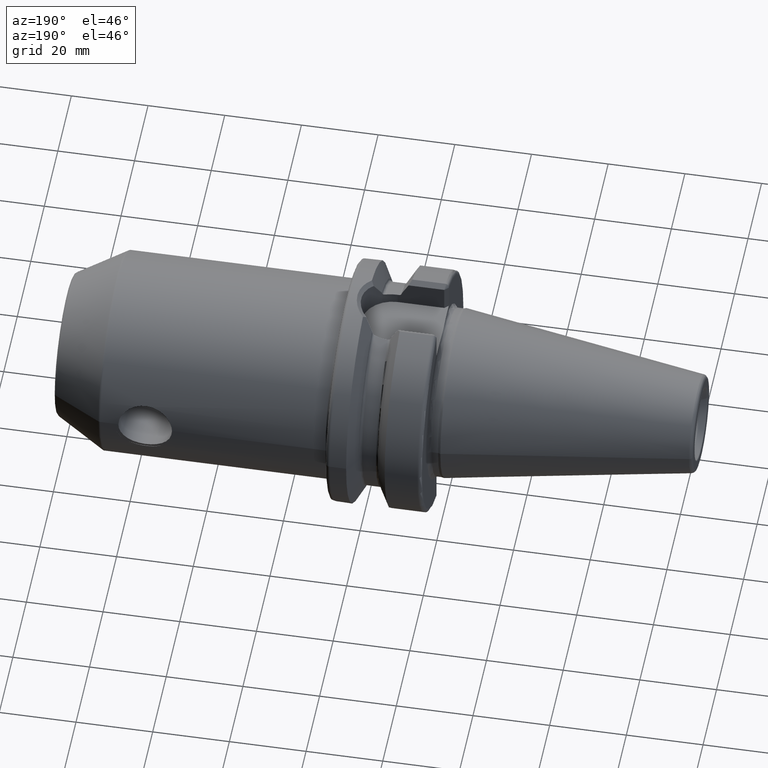
[diagram: clean part render]
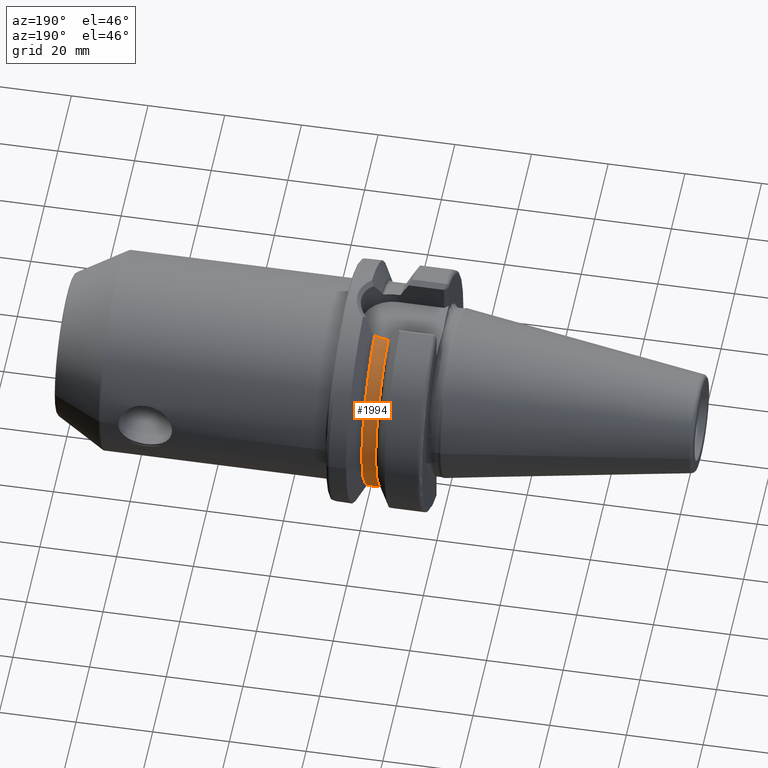
[diagram: same view with one face highlighted and labeled with its STEP entity id]
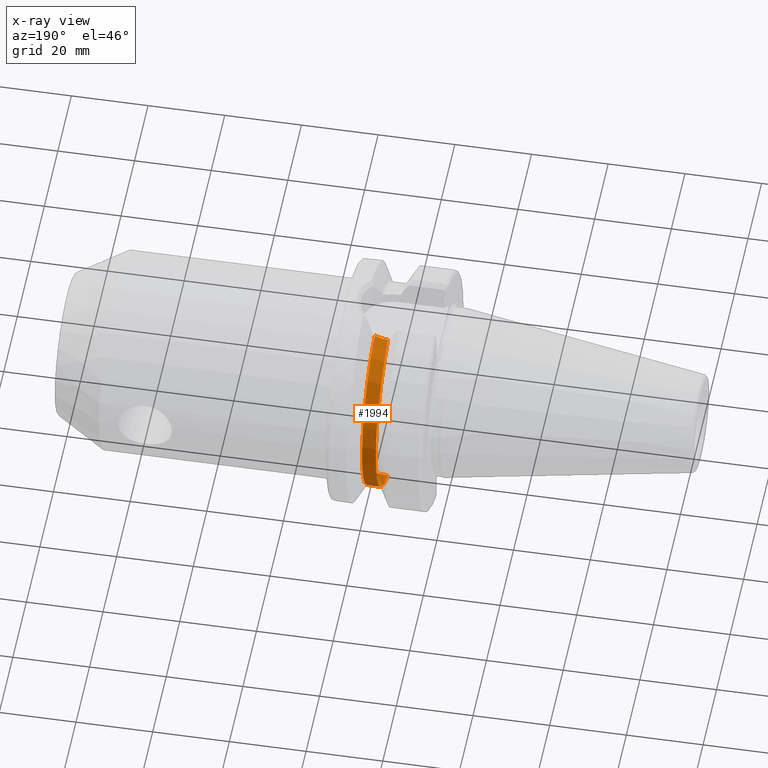
[diagram: x-ray of the same camera — body ghosted, the highlighted face saturated]
A machine part, auxiliary view. The second image highlights one B-rep face of the part: STEP entity #1994.
The next image is the same camera in x-ray: the body ghosted, the highlighted face saturated — about 4% of this face is hidden behind the body in this view.
In plain terms, the highlighted cylindrical surface (partial cylindrical patch) has radius 26.375 mm, axis along (1, 0, 0).
Its self-contained STEP definition (entity closure, byte-faithful):
#185=DIRECTION('',(1.E0,2.074577330686E-14,0.E0));
#186=VECTOR('',#185,3.425E-1);
#187=CARTESIAN_POINT('',(1.48125E1,8.095E0,-2.510202382279E1));
#188=LINE('',#187,#186);
#348=CARTESIAN_POINT('',(1.48125E1,0.E0,0.E0));
#349=DIRECTION('',(-1.E0,0.E0,0.E0));
#350=DIRECTION('',(0.E0,3.069194312796E-1,9.517355003902E-1));
#351=AXIS2_PLACEMENT_3D('',#348,#349,#350);
#353=CARTESIAN_POINT('',(1.5155E1,8.095E0,-2.510202382279E1));
#354=CARTESIAN_POINT('',(1.552274115811E1,8.095E0,-2.510202382279E1));
#355=CARTESIAN_POINT('',(1.625266243215E1,8.045449937199E0,-2.511808739773E1));
#356=CARTESIAN_POINT('',(1.734035783533E1,7.820815510938E0,-2.518941465745E1));
#357=CARTESIAN_POINT('',(1.804170386658E1,7.572200800424E0,-2.526513476705E1));
#358=CARTESIAN_POINT('',(1.83875E1,7.421588020768E0,-2.530929979770E1));
#360=CARTESIAN_POINT('',(1.83875E1,7.421588020768E0,2.530929979770E1));
#361=CARTESIAN_POINT('',(1.804170386658E1,7.572200800424E0,2.526513476705E1));
#362=CARTESIAN_POINT('',(1.734035783533E1,7.820815510938E0,2.518941465745E1));
#363=CARTESIAN_POINT('',(1.625266243215E1,8.045449937199E0,2.511808739773E1));
#364=CARTESIAN_POINT('',(1.552274115811E1,8.095E0,2.510202382279E1));
#365=CARTESIAN_POINT('',(1.5155E1,8.095E0,2.510202382279E1));
#450=CARTESIAN_POINT('',(1.83875E1,0.E0,0.E0));
#451=DIRECTION('',(-1.E0,0.E0,0.E0));
#452=DIRECTION('',(0.E0,2.813872235362E-1,9.595943051262E-1));
#453=AXIS2_PLACEMENT_3D('',#450,#451,#452);
#657=DIRECTION('',(1.E0,0.E0,0.E0));
#658=VECTOR('',#657,3.425E-1);
#659=CARTESIAN_POINT('',(1.48125E1,8.095E0,2.510202382279E1));
#660=LINE('',#659,#658);
#1324=CARTESIAN_POINT('',(1.48125E1,8.095E0,2.510202382279E1));
#1325=CARTESIAN_POINT('',(1.48125E1,8.095E0,-2.510202382279E1));
#1326=VERTEX_POINT('',#1324);
#1327=VERTEX_POINT('',#1325);
#1336=CARTESIAN_POINT('',(1.83875E1,7.421588020768E0,2.530929979770E1));
#1337=CARTESIAN_POINT('',(1.83875E1,7.421588020768E0,-2.530929979770E1));
#1338=VERTEX_POINT('',#1336);
#1339=VERTEX_POINT('',#1337);
#1458=CARTESIAN_POINT('',(1.5155E1,8.095E0,2.510202382279E1));
#1459=VERTEX_POINT('',#1458);
#1466=CARTESIAN_POINT('',(1.5155E1,8.095E0,-2.510202382279E1));
#1467=VERTEX_POINT('',#1466);
#1977=CARTESIAN_POINT('',(1.106999478413E1,0.E0,0.E0));
#1978=DIRECTION('',(1.E0,0.E0,0.E0));
#1979=DIRECTION('',(0.E0,-1.E0,0.E0));
#1980=AXIS2_PLACEMENT_3D('',#1977,#1978,#1979);
#1981=CYLINDRICAL_SURFACE('',#1980,2.6375E1);
#1982=ORIENTED_EDGE('',*,*,#1956,.T.);
#1983=ORIENTED_EDGE('',*,*,#1787,.T.);
#1985=ORIENTED_EDGE('',*,*,#1984,.T.);
#1987=ORIENTED_EDGE('',*,*,#1986,.F.);
#1989=ORIENTED_EDGE('',*,*,#1988,.T.);
#1991=ORIENTED_EDGE('',*,*,#1990,.F.);
#1992=EDGE_LOOP('',(#1982,#1983,#1985,#1987,#1989,#1991));
#1993=FACE_OUTER_BOUND('',#1992,.F.);
#1994=ADVANCED_FACE('',(#1993),#1981,.T.);
#352=CIRCLE('',#351,2.6375E1);
#359=B_SPLINE_CURVE_WITH_KNOTS('',3,(#353,#354,#355,#356,#357,#358),
.UNSPECIFIED.,.F.,.F.,(4,1,1,4),(0.E0,3.333333333333E-1,6.666666666667E-1,1.E0),
.UNSPECIFIED.);
#366=B_SPLINE_CURVE_WITH_KNOTS('',3,(#360,#361,#362,#363,#364,#365),
.UNSPECIFIED.,.F.,.F.,(4,1,1,4),(0.E0,3.333333333333E-1,6.666666666667E-1,1.E0),
.UNSPECIFIED.);
#454=CIRCLE('',#453,2.6375E1);
#1787=EDGE_CURVE('',#1327,#1467,#188,.T.);
#1956=EDGE_CURVE('',#1326,#1327,#352,.T.);
#1984=EDGE_CURVE('',#1467,#1339,#359,.T.);
#1986=EDGE_CURVE('',#1338,#1339,#454,.T.);
#1988=EDGE_CURVE('',#1338,#1459,#366,.T.);
#1990=EDGE_CURVE('',#1326,#1459,#660,.T.);